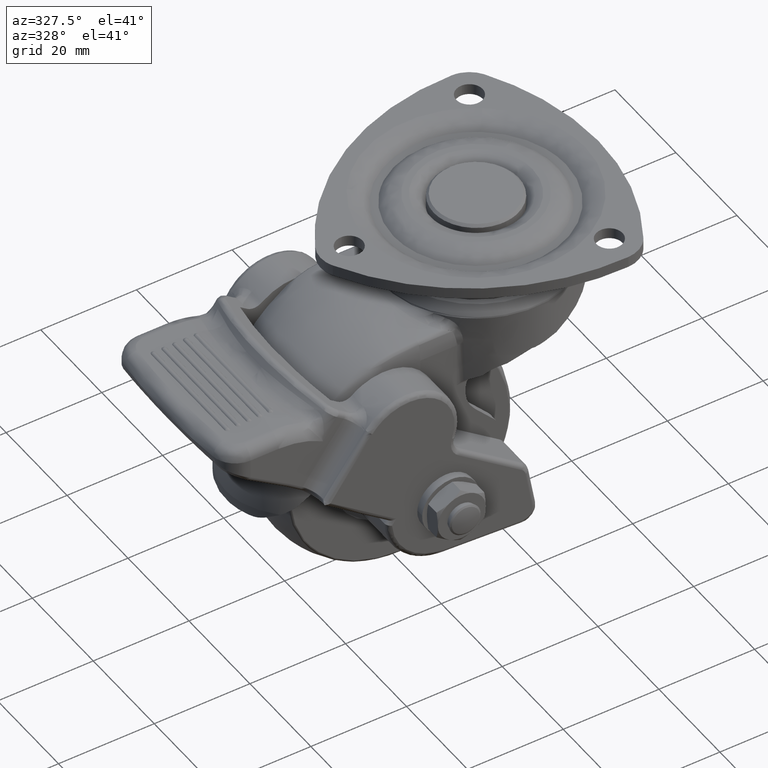
[diagram: clean part render]
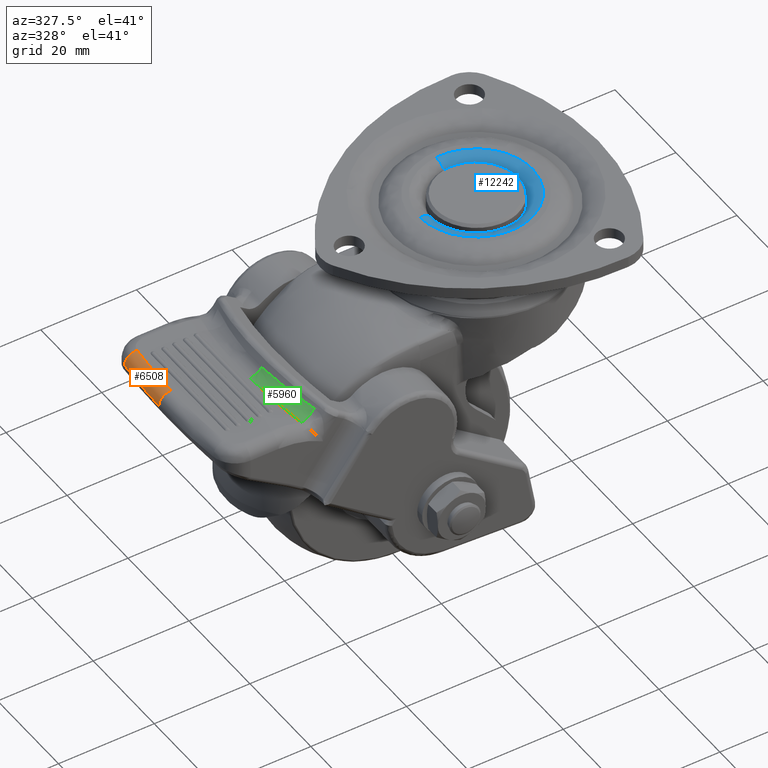
[diagram: same view with three faces highlighted in distinct colors, each labeled with its STEP entity id]
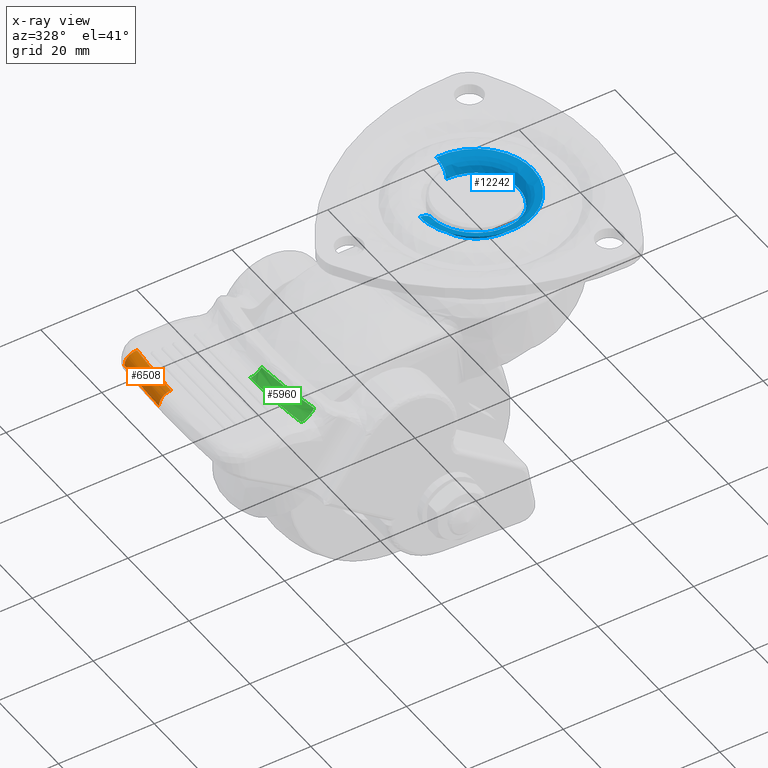
[diagram: x-ray of the same camera — body ghosted, the three highlighted faces saturated]
A machine part, auxiliary view with three faces highlighted in distinct colors.
The next image is the same camera in x-ray (body ghosted, the three faces saturated) — at least one of them is partly hidden behind the body in this view.
Their STEP definitions:

[orange] entity #6508 — the highlighted face is a freeform B-spline surface patch.
#3955=CARTESIAN_POINT('',(-64.979332567179000,2.073876342261240,-20.927378000000001));
#3956=VERTEX_POINT('',#3955);
#3986=CARTESIAN_POINT('',(-64.979627999999906,2.054557262964595,-20.927378000000100));
#3987=VERTEX_POINT('',#3986);
#4014=CARTESIAN_POINT('',(-64.979627999999920,2.054557262964557,-20.927378000000001));
#4015=CARTESIAN_POINT('',(-64.979480974832313,2.064216813100334,-20.927378000000001));
#4016=CARTESIAN_POINT('',(-64.979332567178957,2.073876342261208,-20.927378000000001));
#4024=(BOUNDED_CURVE()B_SPLINE_CURVE(2,(#4014,#4015,#4016),.UNSPECIFIED.,.F.,.U.)CURVE()GEOMETRIC_REPRESENTATION_ITEM()QUASI_UNIFORM_CURVE()RATIONAL_B_SPLINE_CURVE((1.0,0.999999997439546,1.0))REPRESENTATION_ITEM(''));
#4025=EDGE_CURVE('',#3987,#3956,#4024,.T.);
#6372=CARTESIAN_POINT('',(-64.210139791643400,14.538460984712041,-20.927378000000001));
#6373=VERTEX_POINT('',#6372);
#6374=CARTESIAN_POINT('',(-61.724679085081902,14.269230458695940,-18.427378000000001));
#6375=VERTEX_POINT('',#6374);
#6376=CARTESIAN_POINT('',(-64.210139791643329,14.538460984711969,-20.927378000000001));
#6377=CARTESIAN_POINT('',(-64.210139766408545,14.538461217672081,-18.427378000000015));
#6378=CARTESIAN_POINT('',(-61.724679085081831,14.269230458695940,-18.427378000000012));
#6386=(BOUNDED_CURVE()B_SPLINE_CURVE(2,(#6376,#6377,#6378),.UNSPECIFIED.,.F.,.U.)CURVE()GEOMETRIC_REPRESENTATION_ITEM()QUASI_UNIFORM_CURVE()RATIONAL_B_SPLINE_CURVE((1.0,0.707106781186548,1.0))REPRESENTATION_ITEM(''));
#6387=EDGE_CURVE('',#6373,#6375,#6386,.T.);
#6419=CARTESIAN_POINT('',(-64.135409700207262,15.158731966497506,-21.101220599762996));
#6420=CARTESIAN_POINT('',(-64.908698544799137,8.315872070007266,-21.101220599762996));
#6421=CARTESIAN_POINT('',(-64.981638825936429,1.429843685259473,-21.101220599762989));
#6422=CARTESIAN_POINT('',(-64.334039752671885,15.181178488287379,-18.233533646021204));
#6423=CARTESIAN_POINT('',(-65.108473656424266,8.328185923437339,-18.233533646021211));
#6424=CARTESIAN_POINT('',(-65.181521944986855,1.431960947937397,-18.233533646021204));
#6425=CARTESIAN_POINT('',(-61.484490293116352,14.859160378532223,-18.433429677197353));
#6426=CARTESIAN_POINT('',(-62.242497162432066,8.151531213078460,-18.433429677197356));
#6427=CARTESIAN_POINT('',(-62.313995974989076,1.401586668493030,-18.433429677197356));
#6435=(BOUNDED_SURFACE()B_SPLINE_SURFACE(2,2,((#6419,#6422,#6425),(#6420,#6423,#6426),(#6421,#6424,#6427)),.UNSPECIFIED.,.F.,.F.,.U.)B_SPLINE_SURFACE_WITH_KNOTS((3,3),(3,3),(41.982891631317138,55.740352082061769),(0.522167955404520,5.078104104036092),.UNSPECIFIED.)GEOMETRIC_REPRESENTATION_ITEM()RATIONAL_B_SPLINE_SURFACE(((0.890826584633710,0.584582577608326,0.890826825071555),(0.889698569197848,0.583842345802886,0.889698809331237),(0.890884315015402,0.584620461721708,0.890884555468829)))REPRESENTATION_ITEM('')SURFACE());
#6436=CARTESIAN_POINT('',(-62.479627999999899,2.035443574949565,-18.427378000000001));
#6437=VERTEX_POINT('',#6436);
#6438=CARTESIAN_POINT('',(-64.979627999999906,2.054557262964595,-20.927378000000100));
#6439=CARTESIAN_POINT('',(-64.979627999999906,2.054557262964596,-20.762295197471651));
#6440=CARTESIAN_POINT('',(-64.963437160140614,2.054434062588752,-20.599969837775731));
#6441=CARTESIAN_POINT('',(-64.915858131109843,2.054071926095269,-20.360448762401070));
#6442=CARTESIAN_POINT('',(-64.896087484466264,2.053921436577898,-20.281274476703022));
#6443=CARTESIAN_POINT('',(-64.848546163672339,2.053559507424313,-20.124288380650452));
#6444=CARTESIAN_POINT('',(-64.820640433263804,2.053347038997242,-20.046260792576359));
#6445=CARTESIAN_POINT('',(-64.726614433117618,2.052631004451566,-19.819281003775529));
#6446=CARTESIAN_POINT('',(-64.649896146814456,2.052046614687971,-19.675739011745531));
#6447=CARTESIAN_POINT('',(-64.536615072227491,2.051183210337264,-19.505945383301849));
#6448=CARTESIAN_POINT('',(-64.513081877195830,2.051003823551514,-19.472472684175589));
#6449=CARTESIAN_POINT('',(-64.464233588974693,2.050631414528267,-19.406514822423791));
#6450=CARTESIAN_POINT('',(-64.438849268780871,2.050437864346548,-19.373946804473199));
#6451=CARTESIAN_POINT('',(-64.360495693321383,2.049840344575999,-19.278401785090342));
#6452=CARTESIAN_POINT('',(-64.305526279825244,2.049421035149972,-19.217776033059291));
#6453=CARTESIAN_POINT('',(-64.132673800606554,2.048102063420084,-19.044823024536338));
#6454=CARTESIAN_POINT('',(-64.006921591200168,2.047141935876538,-18.941335656762028));
#6455=CARTESIAN_POINT('',(-63.836274693310443,2.045837959593448,-18.827093110167642));
#6456=CARTESIAN_POINT('',(-63.801366723166069,2.045571164595423,-18.804950145728281));
#6457=CARTESIAN_POINT('',(-63.730800863805278,2.045031734473030,-18.762600941321121));
#6458=CARTESIAN_POINT('',(-63.695127510344520,2.044758981523204,-18.742376118865380));
#6459=CARTESIAN_POINT('',(-63.586957868783770,2.043931764008883,-18.684498225572032));
#6460=CARTESIAN_POINT('',(-63.439671555465843,2.042804959156332,-18.614772034134820));
#6461=CARTESIAN_POINT('',(-63.286358504725442,2.041631055893484,-18.559707026065631));
#6462=CARTESIAN_POINT('',(-63.169083309457783,2.040732688034237,-18.523980121313041));
#6463=CARTESIAN_POINT('',(-63.129609169541027,2.040430236815304,-18.513001433665980));
#6464=CARTESIAN_POINT('',(-63.049882473921024,2.039819231583662,-18.492937702971972));
#6465=CARTESIAN_POINT('',(-63.009559880551663,2.039510140353167,-18.483841922392131));
#6466=CARTESIAN_POINT('',(-62.888391262713512,2.038581113819217,-18.459646645609649));
#6467=CARTESIAN_POINT('',(-62.807097292805913,2.037957532855291,-18.447555167420489));
#6468=CARTESIAN_POINT('',(-62.684388780735290,2.037015835714791,-18.435438518922862));
#6469=CARTESIAN_POINT('',(-62.643357783894402,2.036700880595298,-18.432404894035429));
#6470=CARTESIAN_POINT('',(-62.581617530489773,2.036226849934895,-18.429374257793910));
#6471=CARTESIAN_POINT('',(-62.560985996446647,2.036068420917421,-18.428619369004700));
#6472=CARTESIAN_POINT('',(-62.520313008187777,2.035756044091243,-18.427626302392390));
#6473=CARTESIAN_POINT('',(-62.499972507799882,2.035599824909274,-18.427378000000001));
#6474=CARTESIAN_POINT('',(-62.479627999999899,2.035443574949565,-18.427378000000001));
#6475=B_SPLINE_CURVE_WITH_KNOTS('',3,(#6438,#6439,#6440,#6441,#6442,#6443,#6444,#6445,#6446,#6447,#6448,#6449,#6450,#6451,#6452,#6453,#6454,#6455,#6456,#6457,#6458,#6459,#6460,#6461,#6462,#6463,#6464,#6465,#6466,#6467,#6468,#6469,#6470,#6471,#6472,#6473,#6474),.UNSPECIFIED.,.F.,.U.,(4,2,2,2,2,2,2,2,2,2,2,1,2,2,2,2,2,2,4),(0.0,0.125000000000013,0.187500000000022,0.250000000000031,0.375000000000049,0.406250000000050,0.437500000000051,0.500000000000054,0.625000000000058,0.656250000000056,0.687500000000055,0.750000000000050,0.812500000000045,0.843750000000037,0.875000000000030,0.937500000000025,0.968750000000018,0.984375000000009,1.0),.UNSPECIFIED.);
#6476=EDGE_CURVE('',#3987,#6437,#6475,.T.);
#6477=ORIENTED_EDGE('',*,*,#6476,.T.);
#6478=CARTESIAN_POINT('',(-61.724679085081867,14.269230458695910,-18.427378000000001));
#6479=CARTESIAN_POINT('',(-62.385381655969091,8.169815068299455,-18.427378000000001));
#6480=CARTESIAN_POINT('',(-62.479627999999877,2.035443574949550,-18.427378000000001));
#6488=(BOUNDED_CURVE()B_SPLINE_CURVE(2,(#6478,#6479,#6480),.UNSPECIFIED.,.F.,.U.)CURVE()GEOMETRIC_REPRESENTATION_ITEM()QUASI_UNIFORM_CURVE()RATIONAL_B_SPLINE_CURVE((1.0,0.998929754881990,1.0))REPRESENTATION_ITEM(''));
#6489=EDGE_CURVE('',#6375,#6437,#6488,.T.);
#6490=ORIENTED_EDGE('',*,*,#6489,.F.);
#6491=ORIENTED_EDGE('',*,*,#6387,.F.);
#6492=CARTESIAN_POINT('',(-64.979332567178957,2.073876342261208,-20.927378000000001));
#6493=CARTESIAN_POINT('',(-64.883306904538955,8.323976438343868,-20.927378000000004));
#6494=CARTESIAN_POINT('',(-64.210139791643371,14.538460984712010,-20.927378000000001));
#6502=(BOUNDED_CURVE()B_SPLINE_CURVE(2,(#6492,#6493,#6494),.UNSPECIFIED.,.F.,.U.)CURVE()GEOMETRIC_REPRESENTATION_ITEM()QUASI_UNIFORM_CURVE()RATIONAL_B_SPLINE_CURVE((1.0,0.998929759749455,1.0))REPRESENTATION_ITEM(''));
#6503=EDGE_CURVE('',#3956,#6373,#6502,.T.);
#6504=ORIENTED_EDGE('',*,*,#6503,.F.);
#6505=ORIENTED_EDGE('',*,*,#4025,.F.);
#6506=EDGE_LOOP('',(#6477,#6490,#6491,#6504,#6505));
#6507=FACE_OUTER_BOUND('',#6506,.T.);
#6508=ADVANCED_FACE('',(#6507),#6435,.T.);

[blue] entity #12242 — the highlighted face is a freeform B-spline surface patch.
#11190=CARTESIAN_POINT('',(6.103306564185946,-6.408755650168268,-3.000000000000244));
#11191=VERTEX_POINT('',#11190);
#11192=CARTESIAN_POINT('',(8.850000000000000,0.0,-3.0));
#11193=VERTEX_POINT('',#11192);
#11194=CARTESIAN_POINT('',(6.103306564185946,-6.408755650168268,-3.000000000000244));
#11195=CARTESIAN_POINT('',(8.850000000000000,-3.792972962905151,-3.000000000000001));
#11196=CARTESIAN_POINT('',(8.850000000000000,0.0,-3.0));
#11204=(BOUNDED_CURVE()B_SPLINE_CURVE(2,(#11194,#11195,#11196),.UNSPECIFIED.,.F.,.U.)B_SPLINE_CURVE_WITH_KNOTS((3,3),(0.371317006554929,0.500000000000000),.UNSPECIFIED.)CURVE()GEOMETRIC_REPRESENTATION_ITEM()RATIONAL_B_SPLINE_CURVE((0.853680524439765,0.849238495373291,1.0))REPRESENTATION_ITEM(''));
#11205=EDGE_CURVE('',#11191,#11193,#11204,.T.);
#11207=CARTESIAN_POINT('',(-0.617139276590766,8.828456213477473,-2.999999999653067));
#11208=VERTEX_POINT('',#11207);
#11209=CARTESIAN_POINT('',(8.850000000000000,0.0,-3.0));
#11210=CARTESIAN_POINT('',(8.850000000000000,8.850000000000000,-3.000000000000000));
#11211=CARTESIAN_POINT('',(0.0,8.850000000000000,-3.0));
#11212=CARTESIAN_POINT('',(-0.308945675639835,8.850000000000000,-3.0));
#11213=CARTESIAN_POINT('',(-0.617139276590766,8.828456213477473,-2.999999999653066));
#11221=(BOUNDED_CURVE()B_SPLINE_CURVE(2,(#11209,#11210,#11211,#11212,#11213),.UNSPECIFIED.,.F.,.U.)B_SPLINE_CURVE_WITH_KNOTS((3,2,3),(0.500000000000000,0.750000000000000,0.762166313470635),.UNSPECIFIED.)CURVE()GEOMETRIC_REPRESENTATION_ITEM()RATIONAL_B_SPLINE_CURVE((1.0,0.707106781186547,1.0,0.985746277145969,0.972879876374863))REPRESENTATION_ITEM(''));
#11222=EDGE_CURVE('',#11193,#11208,#11221,.T.);
#11239=CARTESIAN_POINT('',(-8.849301241203392,-0.111209452997764,-2.999999999644059));
#11240=VERTEX_POINT('',#11239);
#11254=CARTESIAN_POINT('',(0.077229839260320,-8.849663019117045,-3.0));
#11255=VERTEX_POINT('',#11254);
#11256=CARTESIAN_POINT('',(-8.849301241203392,-0.111209452997764,-2.999999999644059));
#11257=CARTESIAN_POINT('',(-8.739480579620288,-8.850000000000001,-3.0));
#11258=CARTESIAN_POINT('',(0.0,-8.850000000000000,-3.0));
#11259=CARTESIAN_POINT('',(0.038615654862923,-8.850000000000001,-3.000000000000000));
#11260=CARTESIAN_POINT('',(0.077229839260320,-8.849663019117045,-3.000000000000000));
#11268=(BOUNDED_CURVE()B_SPLINE_CURVE(2,(#11256,#11257,#11258,#11259,#11260),.UNSPECIFIED.,.F.,.U.)B_SPLINE_CURVE_WITH_KNOTS((3,2,3),(0.002215704079468,0.250000000000000,0.251539894338956),.UNSPECIFIED.)CURVE()GEOMETRIC_REPRESENTATION_ITEM()RATIONAL_B_SPLINE_CURVE((0.994854295641259,0.709702639985641,1.0,0.998195901561722,0.996414028091220))REPRESENTATION_ITEM(''));
#11269=EDGE_CURVE('',#11240,#11255,#11268,.T.);
#11349=CARTESIAN_POINT('',(0.077229839260320,-8.849663019117045,-3.0));
#11350=CARTESIAN_POINT('',(3.572267529563198,-8.819162287191292,-3.000000000000000));
#11351=CARTESIAN_POINT('',(6.103306564185946,-6.408755650168268,-3.000000000000244));
#11359=(BOUNDED_CURVE()B_SPLINE_CURVE(2,(#11349,#11350,#11351),.UNSPECIFIED.,.F.,.U.)B_SPLINE_CURVE_WITH_KNOTS((3,3),(0.251539894338956,0.371317006554929),.UNSPECIFIED.)CURVE()GEOMETRIC_REPRESENTATION_ITEM()RATIONAL_B_SPLINE_CURVE((0.996414028091220,0.857815129951477,0.853680524439765))REPRESENTATION_ITEM(''));
#11360=EDGE_CURVE('',#11255,#11191,#11359,.T.);
#12139=CARTESIAN_POINT('',(-0.617645185053308,8.835700474721882,-3.208611348413853));
#12140=CARTESIAN_POINT('',(-0.364771477558681,8.853377197502089,-3.208611348413853));
#12141=CARTESIAN_POINT('',(-0.111300706355428,8.856562572826137,-3.208611348413853));
#12142=CARTESIAN_POINT('',(8.745261866470708,8.967863279181566,-3.208611348413852));
#12143=CARTESIAN_POINT('',(8.856562572826137,0.111300706355429,-3.208611348413853));
#12144=CARTESIAN_POINT('',(8.967863279181566,-8.745261866470708,-3.208611348413852));
#12145=CARTESIAN_POINT('',(0.111300706355429,-8.856562572826137,-3.208611348413853));
#12146=CARTESIAN_POINT('',(-8.745261866470708,-8.967863279181566,-3.208611348413852));
#12147=CARTESIAN_POINT('',(-8.856562572826137,-0.111300706355430,-3.208611348413853));
#12148=CARTESIAN_POINT('',(-0.600918046374540,8.596411007660016,0.232612038094932));
#12149=CARTESIAN_POINT('',(-0.354892694012984,8.613609007379667,0.232612038094932));
#12150=CARTESIAN_POINT('',(-0.108286447691546,8.616708115999014,0.232612038094932));
#12151=CARTESIAN_POINT('',(8.508421668307467,8.724994563690558,0.232612038094932));
#12152=CARTESIAN_POINT('',(8.616708115999014,0.108286447691547,0.232612038094932));
#12153=CARTESIAN_POINT('',(8.724994563690558,-8.508421668307467,0.232612038094932));
#12154=CARTESIAN_POINT('',(0.108286447691547,-8.616708115999014,0.232612038094932));
#12155=CARTESIAN_POINT('',(-8.508421668307467,-8.724994563690558,0.232612038094932));
#12156=CARTESIAN_POINT('',(-8.616708115999014,-0.108286447691548,0.232612038094932));
#12157=CARTESIAN_POINT('',(-0.840885550226745,12.029257306820853,-0.007261940282927));
#12158=CARTESIAN_POINT('',(-0.496613706439694,12.053323066776484,-0.007261940282927));
#12159=CARTESIAN_POINT('',(-0.151528997504015,12.057659757398962,-0.007261940282927));
#12160=CARTESIAN_POINT('',(11.906130759894948,12.209188754902977,-0.007261940282927));
#12161=CARTESIAN_POINT('',(12.057659757398962,0.151528997504016,-0.007261940282927));
#12162=CARTESIAN_POINT('',(12.209188754902980,-11.906130759894946,-0.007261940282927));
#12163=CARTESIAN_POINT('',(0.151528997504017,-12.057659757398962,-0.007261940282927));
#12164=CARTESIAN_POINT('',(-11.906130759894946,-12.209188754902980,-0.007261940282927));
#12165=CARTESIAN_POINT('',(-12.057659757398962,-0.151528997504018,-0.007261940282927));
#12173=(BOUNDED_SURFACE()B_SPLINE_SURFACE(2,2,((#12139,#12148,#12157),(#12140,#12149,#12158),(#12141,#12150,#12159),(#12142,#12151,#12160),(#12143,#12152,#12161),(#12144,#12153,#12162),(#12145,#12154,#12163),(#12146,#12155,#12164),(#12147,#12156,#12165)),.UNSPECIFIED.,.F.,.F.,.U.)B_SPLINE_SURFACE_WITH_KNOTS((3,2,2,2,3),(3,3),(0.0,0.799173729625290,20.778536024062230,40.757898318499159,60.737260612936097),(0.0,5.467122398720991),.UNSPECIFIED.)GEOMETRIC_REPRESENTATION_ITEM()RATIONAL_B_SPLINE_SURFACE(((0.889999302781400,0.584039729156063,0.889999371376574),(0.899812873836583,0.590479639123645,0.899812943188121),(0.910479798011975,0.597479540681832,0.910479868185649),(0.643806439307626,0.422481834836347,0.643806488927906),(0.910479798011975,0.597479540681832,0.910479868185649),(0.643806439307626,0.422481834836347,0.643806488927906),(0.910479798011975,0.597479540681832,0.910479868185649),(0.643806439307626,0.422481834836347,0.643806488927906),(0.910479798011975,0.597479540681832,0.910479868185649)))REPRESENTATION_ITEM('')SURFACE());
#12174=ORIENTED_EDGE('',*,*,#11222,.F.);
#12175=ORIENTED_EDGE('',*,*,#11205,.F.);
#12176=ORIENTED_EDGE('',*,*,#11360,.F.);
#12177=ORIENTED_EDGE('',*,*,#11269,.F.);
#12178=CARTESIAN_POINT('',(-11.849064373699790,-0.148907572722384,-4.398953E-016));
#12179=VERTEX_POINT('',#12178);
#12180=CARTESIAN_POINT('',(-8.849301241203392,-0.111209452997764,-2.999999999644059));
#12181=CARTESIAN_POINT('',(-8.849301241915596,-0.111209452976617,-2.282151E-010));
#12182=CARTESIAN_POINT('',(-11.849064373699791,-0.148907572722384,-4.398953E-016));
#12190=(BOUNDED_CURVE()B_SPLINE_CURVE(2,(#12180,#12181,#12182),.UNSPECIFIED.,.F.,.U.)B_SPLINE_CURVE_WITH_KNOTS((3,3),(-1.725134643038470,-0.274865356796197),.UNSPECIFIED.)CURVE()GEOMETRIC_REPRESENTATION_ITEM()RATIONAL_B_SPLINE_CURVE((0.883342149566235,0.624617224184910,0.883342149625226))REPRESENTATION_ITEM(''));
#12191=EDGE_CURVE('',#11240,#12179,#12190,.T.);
#12192=ORIENTED_EDGE('',*,*,#12191,.T.);
#12193=CARTESIAN_POINT('',(11.850000000000000,0.0,0.0));
#12194=VERTEX_POINT('',#12193);
#12195=CARTESIAN_POINT('',(11.850000000000000,0.0,0.0));
#12196=CARTESIAN_POINT('',(11.850000000000000,-11.850000000000000,0.0));
#12197=CARTESIAN_POINT('',(0.0,-11.850000000000000,0.0));
#12198=CARTESIAN_POINT('',(-11.702016369192156,-11.849999999999998,0.0));
#12199=CARTESIAN_POINT('',(-11.849064373699791,-0.148907572722384,-4.398953E-016));
#12207=(BOUNDED_CURVE()B_SPLINE_CURVE(2,(#12195,#12196,#12197,#12198,#12199),.UNSPECIFIED.,.F.,.U.)B_SPLINE_CURVE_WITH_KNOTS((3,2,3),(0.500000000000000,0.750000000000000,0.997784295918580),.UNSPECIFIED.)CURVE()GEOMETRIC_REPRESENTATION_ITEM()RATIONAL_B_SPLINE_CURVE((1.0,0.707106781186547,1.0,0.709702639987929,0.994854295636766))REPRESENTATION_ITEM(''));
#12208=EDGE_CURVE('',#12194,#12179,#12207,.T.);
#12209=ORIENTED_EDGE('',*,*,#12208,.F.);
#12210=CARTESIAN_POINT('',(-0.826339031500371,11.821153233718951,-5.785947E-016));
#12211=VERTEX_POINT('',#12210);
#12212=CARTESIAN_POINT('',(-0.826339031500371,11.821153233718951,-5.785947E-016));
#12213=CARTESIAN_POINT('',(-0.413673023536388,11.850000000000000,0.0));
#12214=CARTESIAN_POINT('',(0.0,11.850000000000000,0.0));
#12215=CARTESIAN_POINT('',(11.850000000000000,11.850000000000000,0.0));
#12216=CARTESIAN_POINT('',(11.850000000000000,0.0,0.0));
#12224=(BOUNDED_CURVE()B_SPLINE_CURVE(2,(#12212,#12213,#12214,#12215,#12216),.UNSPECIFIED.,.F.,.U.)B_SPLINE_CURVE_WITH_KNOTS((3,2,3),(0.237833686522928,0.250000000000000,0.500000000000000),.UNSPECIFIED.)CURVE()GEOMETRIC_REPRESENTATION_ITEM()RATIONAL_B_SPLINE_CURVE((0.972879876361248,0.985746277138427,1.0,0.707106781186547,1.0))REPRESENTATION_ITEM(''));
#12225=EDGE_CURVE('',#12211,#12194,#12224,.T.);
#12226=ORIENTED_EDGE('',*,*,#12225,.F.);
#12227=CARTESIAN_POINT('',(-0.617139276590766,8.828456213477473,-2.999999999653067));
#12228=CARTESIAN_POINT('',(-0.617139276491049,8.828456214180003,-2.527842E-009));
#12229=CARTESIAN_POINT('',(-0.826339031500371,11.821153233718954,-5.785947E-016));
#12237=(BOUNDED_CURVE()B_SPLINE_CURVE(2,(#12227,#12228,#12229),.UNSPECIFIED.,.F.,.U.)B_SPLINE_CURVE_WITH_KNOTS((3,3),(-1.725134643044629,-0.274865357582282),.UNSPECIFIED.)CURVE()GEOMETRIC_REPRESENTATION_ITEM()RATIONAL_B_SPLINE_CURVE((0.863472075289979,0.610566960053307,0.863472075071332))REPRESENTATION_ITEM(''));
#12238=EDGE_CURVE('',#11208,#12211,#12237,.T.);
#12239=ORIENTED_EDGE('',*,*,#12238,.F.);
#12240=EDGE_LOOP('',(#12174,#12175,#12176,#12177,#12192,#12209,#12226,#12239));
#12241=FACE_OUTER_BOUND('',#12240,.T.);
#12242=ADVANCED_FACE('',(#12241),#12173,.T.);

[green] entity #5960 — the highlighted face is a freeform B-spline surface patch.
#5806=CARTESIAN_POINT('',(-48.868185133040697,-2.682234509029950,-18.427378000000001));
#5807=VERTEX_POINT('',#5806);
#5808=CARTESIAN_POINT('',(-46.444611443495297,-2.521701660425795,-17.188207286405500));
#5809=VERTEX_POINT('',#5808);
#5810=CARTESIAN_POINT('',(-48.868185133040697,-2.682234509029950,-18.427378000000001));
#5811=CARTESIAN_POINT('',(-47.340988791554985,-2.581075967767512,-18.427377999999997));
#5812=CARTESIAN_POINT('',(-46.444611443495312,-2.521701660425799,-17.188207286405500));
#5820=(BOUNDED_CURVE()B_SPLINE_CURVE(2,(#5810,#5811,#5812),.UNSPECIFIED.,.F.,.U.)CURVE()GEOMETRIC_REPRESENTATION_ITEM()QUASI_UNIFORM_CURVE()RATIONAL_B_SPLINE_CURVE((1.0,0.890770199172744,1.0))REPRESENTATION_ITEM(''));
#5821=EDGE_CURVE('',#5807,#5809,#5820,.T.);
#5853=CARTESIAN_POINT('',(-46.441224709851646,-2.453151805348706,-17.177297524356817));
#5854=CARTESIAN_POINT('',(-46.439686360386425,-2.475825132221563,-17.177246839496707));
#5855=CARTESIAN_POINT('',(-46.438148014256917,-2.498498409929812,-17.177196154746497));
#5856=CARTESIAN_POINT('',(-46.282792232224899,-4.788246290504441,-17.172077560917401));
#5857=CARTESIAN_POINT('',(-45.991303636772940,-7.049483253237103,-17.258308341769865));
#5858=CARTESIAN_POINT('',(-45.141980748915650,-11.482140667681442,-17.601620755251972));
#5859=CARTESIAN_POINT('',(-44.584599973608043,-13.660011605290423,-17.858261923533682));
#5860=CARTESIAN_POINT('',(-43.882469824363227,-15.819953090614572,-18.199474253321480));
#5861=CARTESIAN_POINT('',(-43.875519198467074,-15.841335088294372,-18.202852030586939));
#5862=CARTESIAN_POINT('',(-43.868568595265273,-15.862717016160257,-18.206229796823688));
#5863=CARTESIAN_POINT('',(-46.445217986444192,-2.453419734349445,-17.182817579831870));
#5864=CARTESIAN_POINT('',(-46.443681444801918,-2.476092015602450,-17.182769502977504));
#5865=CARTESIAN_POINT('',(-46.442144904826513,-2.498764272260839,-17.182721426175320));
#5866=CARTESIAN_POINT('',(-46.286962949194830,-4.788535565623400,-17.177865937672355));
#5867=CARTESIAN_POINT('',(-45.995648223129429,-7.049800132517333,-17.264366131765609));
#5868=CARTESIAN_POINT('',(-45.146668773606144,-11.482521693877333,-17.608232481195639));
#5869=CARTESIAN_POINT('',(-44.589455451087311,-13.660428554168874,-17.865153932689108));
#5870=CARTESIAN_POINT('',(-43.887495649094433,-15.820416146914175,-18.206672491415461));
#5871=CARTESIAN_POINT('',(-43.880546131411378,-15.841800379926353,-18.210053581409827));
#5872=CARTESIAN_POINT('',(-43.873596625084467,-15.863184577994680,-18.213434665879177));
#5873=CARTESIAN_POINT('',(-47.344047920247490,-2.513726753013612,-18.425303789402339));
#5874=CARTESIAN_POINT('',(-47.343028458318642,-2.536171039371300,-18.425995025028335));
#5875=CARTESIAN_POINT('',(-47.342008748784551,-2.558620776960509,-18.426686428540506));
#5876=CARTESIAN_POINT('',(-47.237726517604848,-4.854479202253596,-18.497393917766004));
#5877=CARTESIAN_POINT('',(-46.999834707082634,-7.123042062620926,-18.664534142539843));
#5878=CARTESIAN_POINT('',(-46.264687150027669,-11.573390304222945,-19.185022620528343));
#5879=CARTESIAN_POINT('',(-45.767985711106860,-13.761631138722130,-19.537994837976282));
#5880=CARTESIAN_POINT('',(-45.132364708258507,-15.935112637711899,-19.989636355640940));
#5881=CARTESIAN_POINT('',(-45.125942266728863,-15.957073928765018,-19.994199831716408));
#5882=CARTESIAN_POINT('',(-45.119517240063260,-15.979044059590803,-19.998765144664347));
#5883=CARTESIAN_POINT('',(-48.875557295379579,-2.612459144824384,-18.427387315215750));
#5884=CARTESIAN_POINT('',(-48.875385268511032,-2.635869002978835,-18.427384210140431));
#5885=CARTESIAN_POINT('',(-48.875213241830131,-2.659278835604998,-18.427381105068527));
#5886=CARTESIAN_POINT('',(-48.857839512916087,-5.023540494324220,-18.427067510238949));
#5887=CARTESIAN_POINT('',(-48.703074639471566,-7.376608803520749,-18.511487683645971));
#5888=CARTESIAN_POINT('',(-48.115948467138281,-12.034060910725156,-18.839118404993869));
#5889=CARTESIAN_POINT('',(-47.684500927252017,-14.345034899421403,-19.081927394274807));
#5890=CARTESIAN_POINT('',(-47.098642286678796,-16.664699795838374,-19.403685520825160));
#5891=CARTESIAN_POINT('',(-47.092842192162067,-16.687664850400353,-19.406870977889838));
#5892=CARTESIAN_POINT('',(-47.087042107173055,-16.710629867238008,-19.410056429721827));
#5893=CARTESIAN_POINT('',(-48.882396993823043,-2.612900082240474,-18.427396620211521));
#5894=CARTESIAN_POINT('',(-48.882227913264138,-2.636314198081592,-18.427390413460824));
#5895=CARTESIAN_POINT('',(-48.882058833073799,-2.659728262884912,-18.427384206723648));
#5896=CARTESIAN_POINT('',(-48.864983631709926,-5.024285994148915,-18.426757395937564));
#5897=CARTESIAN_POINT('',(-48.710482192921077,-7.377711589540802,-18.510822069951168));
#5898=CARTESIAN_POINT('',(-48.123751671291039,-12.036002671597315,-18.837660392996227));
#5899=CARTESIAN_POINT('',(-47.692438129365975,-14.347451052198950,-19.080038601820796));
#5900=CARTESIAN_POINT('',(-47.106622088001565,-16.667660700561783,-19.401307539558363));
#5901=CARTESIAN_POINT('',(-47.100822900215384,-16.690629227375815,-19.404487887599824));
#5902=CARTESIAN_POINT('',(-47.095023731463456,-16.713597678801882,-19.407668225202659));
#5910=(BOUNDED_SURFACE()B_SPLINE_SURFACE(3,2,((#5853,#5863,#5873,#5883,#5893),(#5854,#5864,#5874,#5884,#5894),(#5855,#5865,#5875,#5885,#5895),(#5856,#5866,#5876,#5886,#5896),(#5857,#5867,#5877,#5887,#5897),(#5858,#5868,#5878,#5888,#5898),(#5859,#5869,#5879,#5889,#5899),(#5860,#5870,#5880,#5890,#5900),(#5861,#5871,#5881,#5891,#5901),(#5862,#5872,#5882,#5892,#5902)),.UNSPECIFIED.,.F.,.F.,.U.)B_SPLINE_SURFACE_WITH_KNOTS((4,2,2,2,4),(3,1,1,3),(0.0,0.071705666620248,7.242272488914402,14.412839311208559,14.484544977833380),(0.0,0.019497747874865,3.906449662947995,3.926050010862705),.UNSPECIFIED.)GEOMETRIC_REPRESENTATION_ITEM()RATIONAL_B_SPLINE_SURFACE(((1.001092582014442,1.000546291007221,0.891094761798508,1.000549165671488,1.001098331342976),(1.001093667396233,1.000546833698117,0.890986574256584,1.000549711218104,1.001099422436207),(1.001094752778024,1.000547376389012,0.890878386714660,1.000550256764719,1.001100513529438),(1.001204376341345,1.000602188170672,0.879951444738545,1.000605356974101,1.001210713948201),(1.001324539219855,1.000662269609927,0.867973976013891,1.000665754570796,1.001331509141592),(1.001590625659531,1.000795312829765,0.841451292396519,1.000799497883780,1.001598995767560),(1.001736808304670,1.000868404152335,0.826880252804630,1.000872973823725,1.001745947647450),(1.001902008978526,1.000951004489263,0.810413554195689,1.000956008815871,1.001912017631743),(1.001903644628726,1.000951822314363,0.810250517579396,1.000956830944488,1.001913661888977),(1.001905280278926,1.000952640139463,0.810087480963103,1.000957653073105,1.001915306146211)))REPRESENTATION_ITEM('')SURFACE());
#5911=CARTESIAN_POINT('',(-47.096448243937601,-16.638771659013649,-19.402877469059302));
#5912=VERTEX_POINT('',#5911);
#5913=CARTESIAN_POINT('',(-43.899479432127848,-15.799493610597899,-18.210499999820250));
#5914=VERTEX_POINT('',#5913);
#5915=CARTESIAN_POINT('',(-47.096448243937601,-16.638771659013649,-19.402877469059302));
#5916=CARTESIAN_POINT('',(-45.138784566210738,-15.913160181099283,-19.985074715328778));
#5917=CARTESIAN_POINT('',(-43.899479432127968,-15.799493610597921,-18.210499999820161));
#5925=(BOUNDED_CURVE()B_SPLINE_CURVE(2,(#5915,#5916,#5917),.UNSPECIFIED.,.F.,.U.)CURVE()GEOMETRIC_REPRESENTATION_ITEM()QUASI_UNIFORM_CURVE()RATIONAL_B_SPLINE_CURVE((1.0,0.810576590812144,1.0))REPRESENTATION_ITEM(''));
#5926=EDGE_CURVE('',#5912,#5914,#5925,.T.);
#5927=ORIENTED_EDGE('',*,*,#5926,.T.);
#5928=CARTESIAN_POINT('',(-46.444611443495297,-2.521701660425795,-17.188207286405500));
#5929=CARTESIAN_POINT('',(-46.367821414181641,-3.656055988518551,-17.185932697335652));
#5930=CARTESIAN_POINT('',(-46.256985176603308,-4.786521373495437,-17.206334535171958));
#5931=CARTESIAN_POINT('',(-46.075597542966293,-6.194723043260479,-17.259684593626961));
#5932=CARTESIAN_POINT('',(-46.037168321824687,-6.476150717709321,-17.271751304991952));
#5933=CARTESIAN_POINT('',(-45.956150646694340,-7.037543128114398,-17.298613111302888));
#5934=CARTESIAN_POINT('',(-45.828340022007382,-7.877798877179796,-17.343011024964230));
#5935=CARTESIAN_POINT('',(-45.681730320637797,-8.712580223226009,-17.399602419504038));
#5936=CARTESIAN_POINT('',(-45.363485983711492,-10.374880513244030,-17.528764778428059));
#5937=CARTESIAN_POINT('',(-45.117993218582271,-11.473407119993659,-17.636166117044201));
#5938=CARTESIAN_POINT('',(-44.559689937168478,-13.651075947197681,-17.892425070178330));
#5939=CARTESIAN_POINT('',(-44.246883545756333,-14.730218707509810,-18.041286676924919));
#5940=CARTESIAN_POINT('',(-43.899479432127897,-15.799493610597899,-18.210499999820250));
#5941=B_SPLINE_CURVE_WITH_KNOTS('',3,(#5928,#5929,#5930,#5931,#5932,#5933,#5934,#5935,#5936,#5937,#5938,#5939,#5940),.UNSPECIFIED.,.F.,.U.,(4,2,2,1,2,2,4),(0.0,0.250000000000001,0.312500000000001,0.375000000000001,0.500000000000001,0.750000000000000,1.0),.UNSPECIFIED.);
#5942=EDGE_CURVE('',#5809,#5914,#5941,.T.);
#5943=ORIENTED_EDGE('',*,*,#5942,.F.);
#5944=ORIENTED_EDGE('',*,*,#5821,.F.);
#5945=CARTESIAN_POINT('',(-47.096448243937601,-16.638771659013649,-19.402877469059302));
#5946=CARTESIAN_POINT('',(-47.384418287529542,-15.498929187595049,-19.244492906798609));
#5947=CARTESIAN_POINT('',(-47.636161991897339,-14.353201218841599,-19.104516986606050));
#5948=CARTESIAN_POINT('',(-48.069621225536423,-12.050201098605120,-18.862540886123909));
#5949=CARTESIAN_POINT('',(-48.251331257229189,-10.892928481203230,-18.760537386830269));
#5950=CARTESIAN_POINT('',(-48.545861466065681,-8.566887294300839,-18.595883547488089));
#5951=CARTESIAN_POINT('',(-48.658679744640509,-7.398118728939018,-18.533229699978651));
#5952=CARTESIAN_POINT('',(-48.815406292593707,-5.048963991231533,-18.448979083320790));
#5953=CARTESIAN_POINT('',(-48.859315842965628,-3.868578283045291,-18.427378000000019));
#5954=CARTESIAN_POINT('',(-48.868185133040598,-2.682234509030070,-18.427378000000001));
#5955=B_SPLINE_CURVE_WITH_KNOTS('',3,(#5945,#5946,#5947,#5948,#5949,#5950,#5951,#5952,#5953,#5954),.UNSPECIFIED.,.F.,.U.,(4,2,2,2,4),(0.0,0.250000000000000,0.500000000000000,0.750000000000000,1.0),.UNSPECIFIED.);
#5956=EDGE_CURVE('',#5912,#5807,#5955,.T.);
#5957=ORIENTED_EDGE('',*,*,#5956,.F.);
#5958=EDGE_LOOP('',(#5927,#5943,#5944,#5957));
#5959=FACE_OUTER_BOUND('',#5958,.T.);
#5960=ADVANCED_FACE('',(#5959),#5910,.F.);